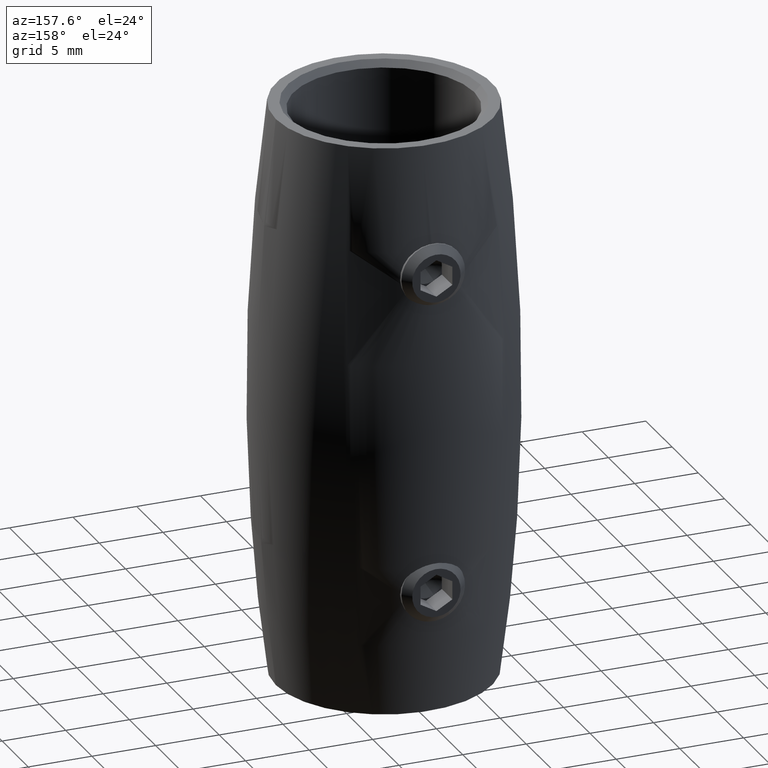
[diagram: clean part render]
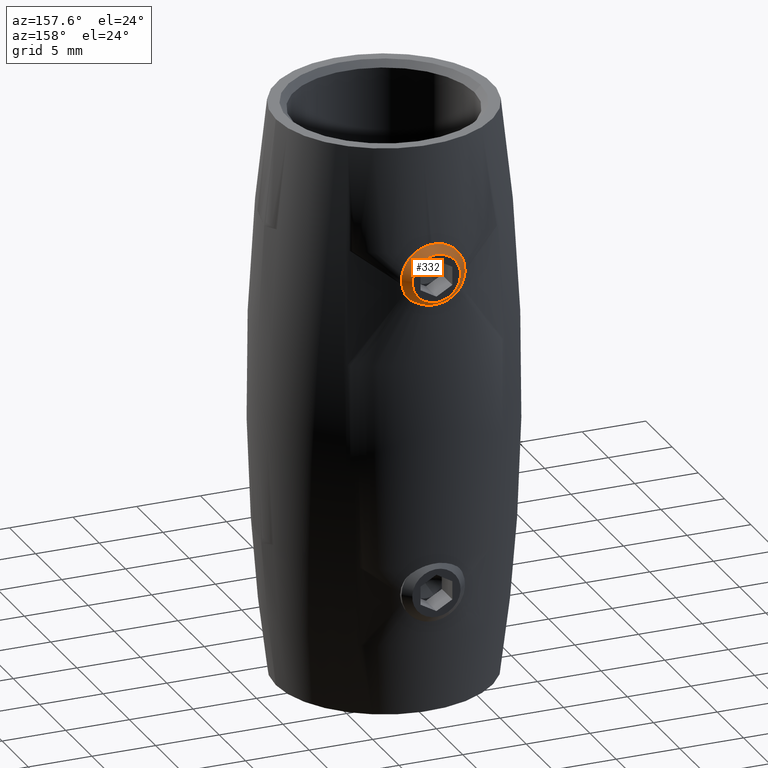
[diagram: same view with one face highlighted and labeled with its STEP entity id]
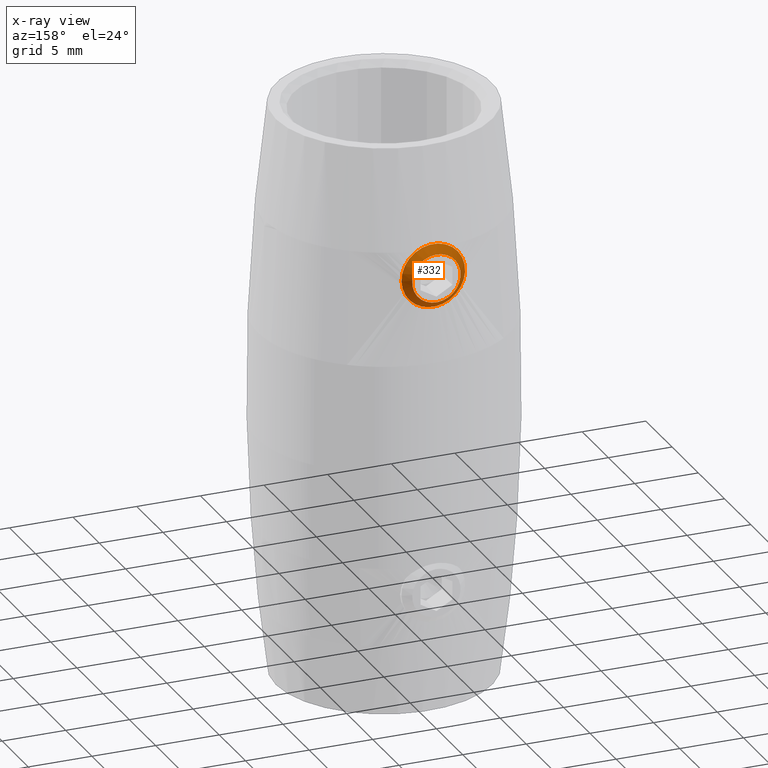
[diagram: x-ray of the same camera — body ghosted, the highlighted face saturated]
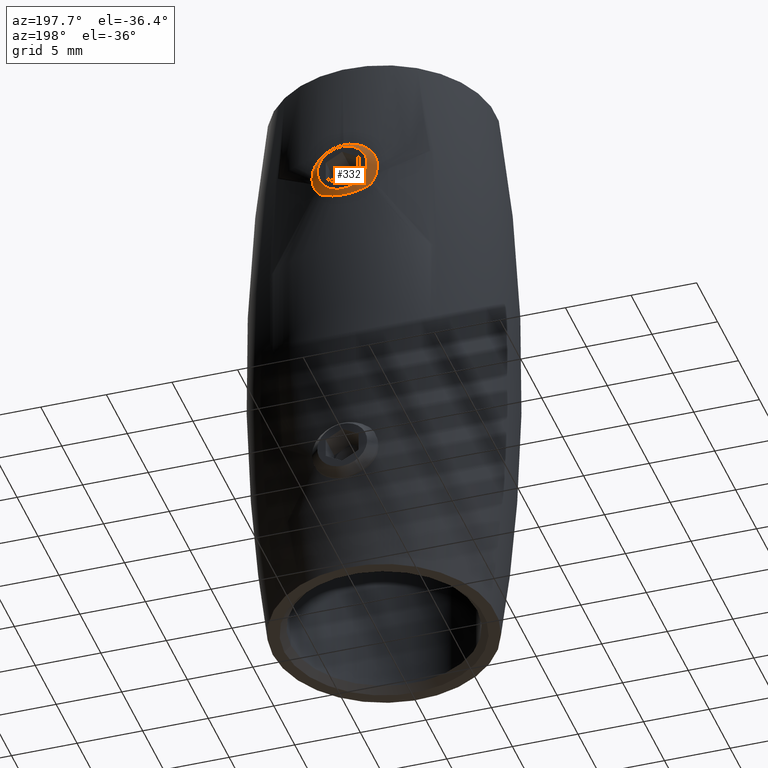
[diagram: same view with one face highlighted and labeled with its STEP entity id]
A machine part, auxiliary view. The second image highlights one B-rep face of the part: STEP entity #332.
The next image is the same camera in x-ray: the body ghosted, the highlighted face saturated — about 0% of this face is hidden behind the body in this view.
A second angle (auxiliary view) of the same face is appended — the face is thin or edge-on in the first view.
In plain terms, the highlighted conical surface has half-angle 45 deg.
Its self-contained STEP definition (entity closure, byte-faithful):
#332 = ADVANCED_FACE ( 'NONE', ( #5353, #6713 ), #4172, .T. ) ;
#436 = EDGE_CURVE ( 'NONE', #1016, #1016, #11164, .T. ) ;
#1016 = VERTEX_POINT ( 'NONE', #1995 ) ;
#1540 = DIRECTION ( 'NONE',  ( 0.000000000000000000, 0.000000000000000000, -1.000000000000000000 ) ) ;
#1995 = CARTESIAN_POINT ( 'NONE',  ( 2.399999999999998135, 0.000000000000000000, -2.500000000000000000 ) ) ;
#2370 = DIRECTION ( 'NONE',  ( 1.000000000000000000, 0.000000000000000000, 0.000000000000000000 ) ) ;
#2547 = ORIENTED_EDGE ( 'NONE', *, *, #2867, .F. ) ;
#2576 = EDGE_LOOP ( 'NONE', ( #10868 ) ) ;
#2867 = EDGE_CURVE ( 'NONE', #5821, #5821, #5467, .T. ) ;
#4027 = AXIS2_PLACEMENT_3D ( 'NONE', #5209, #6101, #8053 ) ;
#4172 = CONICAL_SURFACE ( 'NONE', #4027, 1.900000000000000133, 0.7853981633974465026 ) ;
#4978 = CARTESIAN_POINT ( 'NONE',  ( 3.000000000000000000, 0.000000000000000000, -1.900000000000000133 ) ) ;
#5209 = CARTESIAN_POINT ( 'NONE',  ( 3.000000000000000000, 0.000000000000000000, 0.000000000000000000 ) ) ;
#5353 = FACE_OUTER_BOUND ( 'NONE', #2576, .T. ) ;
#5467 = CIRCLE ( 'NONE', #10676, 1.900000000000000133 ) ;
#5533 = AXIS2_PLACEMENT_3D ( 'NONE', #8251, #9125, #1540 ) ;
#5821 = VERTEX_POINT ( 'NONE', #4978 ) ;
#6101 = DIRECTION ( 'NONE',  ( -1.000000000000000000, 0.000000000000000000, 0.000000000000000000 ) ) ;
#6713 = FACE_BOUND ( 'NONE', #10041, .T. ) ;
#8053 = DIRECTION ( 'NONE',  ( 0.000000000000000000, 0.000000000000000000, 1.000000000000000000 ) ) ;
#8251 = CARTESIAN_POINT ( 'NONE',  ( 2.399999999999998135, 0.000000000000000000, 0.000000000000000000 ) ) ;
#9125 = DIRECTION ( 'NONE',  ( -1.000000000000000000, 0.000000000000000000, 0.000000000000000000 ) ) ;
#10041 = EDGE_LOOP ( 'NONE', ( #2547 ) ) ;
#10189 = DIRECTION ( 'NONE',  ( 0.000000000000000000, 0.000000000000000000, -1.000000000000000000 ) ) ;
#10676 = AXIS2_PLACEMENT_3D ( 'NONE', #11069, #2370, #10189 ) ;
#10868 = ORIENTED_EDGE ( 'NONE', *, *, #436, .F. ) ;
#11069 = CARTESIAN_POINT ( 'NONE',  ( 3.000000000000000000, 0.000000000000000000, 0.000000000000000000 ) ) ;
#11164 = CIRCLE ( 'NONE', #5533, 2.500000000000000000 ) ;